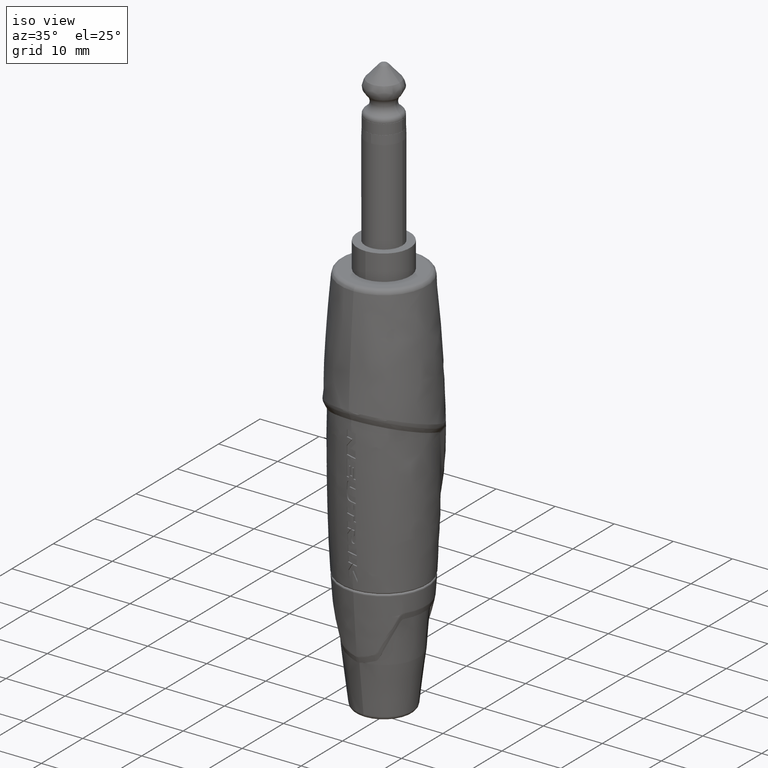
[diagram: clean part render]
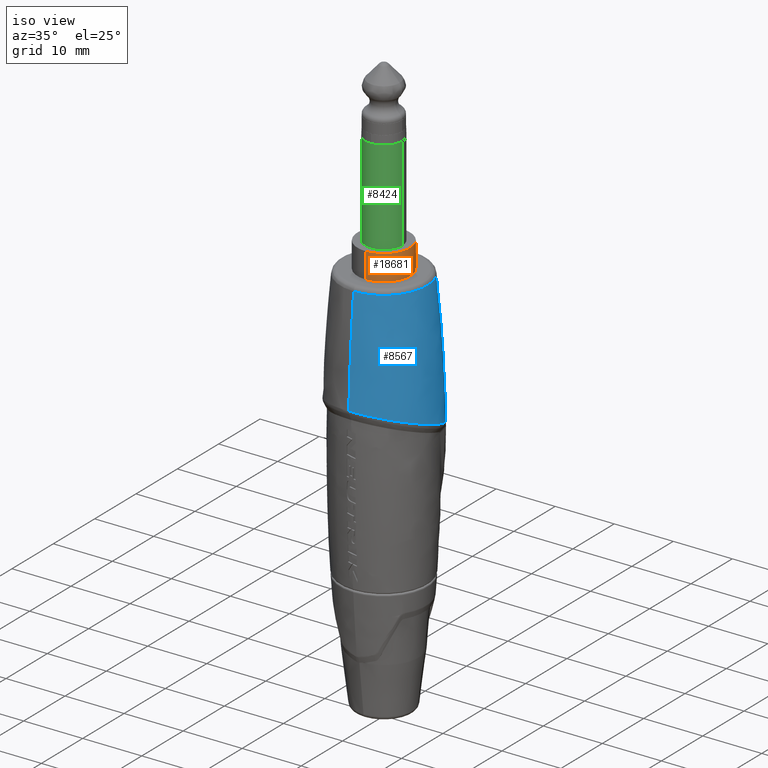
[diagram: same view with three faces highlighted in distinct colors, each labeled with its STEP entity id]
A machine part, iso view with three faces highlighted in distinct colors.
Their STEP definitions:

[orange] entity #18681 — the highlighted cylindrical surface (edge-blend (fillet) strip) has radius 4.45 mm, axis along (0, 0, -1).
#47=CARTESIAN_POINT('',(0.E0,0.E0,-1.75E1));
#48=DIRECTION('',(0.E0,0.E0,-1.E0));
#49=DIRECTION('',(0.E0,1.E0,0.E0));
#50=AXIS2_PLACEMENT_3D('',#47,#48,#49);
#62=DIRECTION('',(0.E0,0.E0,1.E0));
#63=VECTOR('',#62,4.329089653438E0);
#64=CARTESIAN_POINT('',(0.E0,4.45E0,-2.182908965344E1));
#65=LINE('',#64,#63);
#66=DIRECTION('',(0.E0,0.E0,1.E0));
#67=VECTOR('',#66,4.329089653438E0);
#68=CARTESIAN_POINT('',(0.E0,-4.45E0,-2.182908965344E1));
#69=LINE('',#68,#67);
#7478=CARTESIAN_POINT('',(0.E0,0.E0,-2.182908965344E1));
#7479=DIRECTION('',(0.E0,0.E0,-1.E0));
#7480=DIRECTION('',(0.E0,1.E0,0.E0));
#7481=AXIS2_PLACEMENT_3D('',#7478,#7479,#7480);
#7721=CARTESIAN_POINT('',(0.E0,4.45E0,-1.75E1));
#7722=CARTESIAN_POINT('',(0.E0,-4.45E0,-1.75E1));
#7723=VERTEX_POINT('',#7721);
#7724=VERTEX_POINT('',#7722);
#8329=CARTESIAN_POINT('',(0.E0,4.45E0,-2.182908965344E1));
#8330=CARTESIAN_POINT('',(0.E0,-4.45E0,-2.182908965344E1));
#8331=VERTEX_POINT('',#8329);
#8332=VERTEX_POINT('',#8330);
#18670=CARTESIAN_POINT('',(0.E0,0.E0,-1.7175E1));
#18671=DIRECTION('',(0.E0,0.E0,-1.E0));
#18672=DIRECTION('',(0.E0,-1.E0,0.E0));
#18673=AXIS2_PLACEMENT_3D('',#18670,#18671,#18672);
#18674=CYLINDRICAL_SURFACE('',#18673,4.45E0);
#18675=ORIENTED_EDGE('',*,*,#8481,.T.);
#18676=ORIENTED_EDGE('',*,*,#8465,.T.);
#18677=ORIENTED_EDGE('',*,*,#8432,.F.);
#18678=ORIENTED_EDGE('',*,*,#8462,.F.);
#18679=EDGE_LOOP('',(#18675,#18676,#18677,#18678));
#18680=FACE_OUTER_BOUND('',#18679,.F.);
#18681=ADVANCED_FACE('',(#18680),#18674,.T.);
#51=CIRCLE('',#50,4.45E0);
#7482=CIRCLE('',#7481,4.45E0);
#8432=EDGE_CURVE('',#7723,#7724,#51,.T.);
#8462=EDGE_CURVE('',#8331,#7723,#65,.T.);
#8465=EDGE_CURVE('',#8332,#7724,#69,.T.);
#8481=EDGE_CURVE('',#8331,#8332,#7482,.T.);

[blue] entity #8567 — the highlighted face is a freeform B-spline surface patch.
#90=CARTESIAN_POINT('',(5.633059290090E-1,8.546565744403E0,-5.690287393228E1));
#91=CARTESIAN_POINT('',(5.013511374231E-1,8.550286008314E0,-5.691794391557E1));
#92=CARTESIAN_POINT('',(3.769751142255E-1,8.556530583069E0,-5.694300355376E1));
#93=CARTESIAN_POINT('',(1.881799148025E-1,8.562220140791E0,-5.696560489167E1));
#94=CARTESIAN_POINT('',(6.275104963152E-2,8.563473823630E0,-5.697056236456E1));
#95=CARTESIAN_POINT('',(1.010303935482E-14,8.563473839911E0,-5.697056248902E1));
#97=CARTESIAN_POINT('',(1.010303952409E-14,-2.768013003356E2,
-5.004128554270E1));
#98=DIRECTION('',(-1.E0,0.E0,0.E0));
#99=DIRECTION('',(0.E0,9.997053183331E-1,-2.427501795013E-2));
#100=AXIS2_PLACEMENT_3D('',#97,#98,#99);
#102=CARTESIAN_POINT('',(3.403204476718E-1,8.376457366021E0,-6.232030293010E1));
#103=CARTESIAN_POINT('',(3.027411987171E-1,8.377624308419E0,-6.232865327475E1));
#104=CARTESIAN_POINT('',(2.274144876906E-1,8.379580920511E0,-6.234254572713E1));
#105=CARTESIAN_POINT('',(1.134219338954E-1,8.381359562029E0,-6.235506058657E1));
#106=CARTESIAN_POINT('',(3.780185357188E-2,8.381750803343E0,-6.235780131116E1));
#107=CARTESIAN_POINT('',(-7.233818427476E-12,8.381750805007E0,
-6.235780133953E1));
#109=CARTESIAN_POINT('',(2.535993676242E0,8.018073157899E0,-6.169599589441E1));
#110=CARTESIAN_POINT('',(2.390630102668E0,8.061883894984E0,-6.174651627005E1));
#111=CARTESIAN_POINT('',(2.098712471218E0,8.141380359958E0,-6.184416685139E1));
#112=CARTESIAN_POINT('',(1.658257290950E0,8.236539919625E0,-6.198024913657E1));
#113=CARTESIAN_POINT('',(1.217329940257E0,8.307752331463E0,-6.210552801262E1));
#114=CARTESIAN_POINT('',(7.773391931449E-1,8.355463207687E0,-6.221961801632E1));
#115=CARTESIAN_POINT('',(4.856092908195E-1,8.371945502210E0,-6.228801812547E1));
#116=CARTESIAN_POINT('',(3.403204476718E-1,8.376457366021E0,-6.232030293010E1));
#118=CARTESIAN_POINT('',(3.178535301891E0,7.815182240760E0,-6.100833639668E1));
#119=CARTESIAN_POINT('',(3.159642238165E0,7.820798261781E0,-6.105815930987E1));
#120=CARTESIAN_POINT('',(3.118912116413E0,7.833312415408E0,-6.115150828203E1));
#121=CARTESIAN_POINT('',(3.050726531723E0,7.855023067520E0,-6.127322545386E1));
#122=CARTESIAN_POINT('',(2.976857376853E0,7.878905651725E0,-6.137782981023E1));
#123=CARTESIAN_POINT('',(2.898318882758E0,7.904363598773E0,-6.146691828337E1));
#124=CARTESIAN_POINT('',(2.814708626573E0,7.931301591587E0,-6.154286464814E1));
#125=CARTESIAN_POINT('',(2.725993903374E0,7.959523762682E0,-6.160657784713E1));
#126=CARTESIAN_POINT('',(2.632993637433E0,7.988579772123E0,-6.165810316662E1));
#127=CARTESIAN_POINT('',(2.568724062813E0,8.008208468665E0,-6.168462256135E1));
#128=CARTESIAN_POINT('',(2.535993676242E0,8.018073157899E0,-6.169599589441E1));
#130=CARTESIAN_POINT('',(7.030612731567E0,4.984460320774E0,-4.594916890749E1));
#131=CARTESIAN_POINT('',(6.916890420499E0,5.164718602683E0,-4.675001944230E1));
#132=CARTESIAN_POINT('',(6.665157749849E0,5.520023610735E0,-4.833085230996E1));
#133=CARTESIAN_POINT('',(6.217550160843E0,6.026666943979E0,-5.064264706766E1));
#134=CARTESIAN_POINT('',(5.705652180288E0,6.495834194162E0,-5.288699946051E1));
#135=CARTESIAN_POINT('',(5.133898498054E0,6.919159356969E0,-5.507194327152E1));
#136=CARTESIAN_POINT('',(4.518877864678E0,7.283203593357E0,-5.715740382145E1));
#137=CARTESIAN_POINT('',(3.867477126391E0,7.585942151800E0,-5.913779341807E1));
#138=CARTESIAN_POINT('',(3.410886847653E0,7.746113206963E0,-6.039563592416E1));
#139=CARTESIAN_POINT('',(3.178535301891E0,7.815182240760E0,-6.100833639668E1));
#141=CARTESIAN_POINT('',(7.685559442791E0,3.858602477099E0,-4.481839443025E1));
#142=CARTESIAN_POINT('',(7.647918706398E0,3.934692792848E0,-4.484579542653E1));
#143=CARTESIAN_POINT('',(7.575449085304E0,4.075728740708E0,-4.490235989416E1));
#144=CARTESIAN_POINT('',(7.478489634895E0,4.253747016673E0,-4.499244331978E1));
#145=CARTESIAN_POINT('',(7.393006377535E0,4.403480663028E0,-4.508613639566E1));
#146=CARTESIAN_POINT('',(7.318804023046E0,4.528649027417E0,-4.518335312496E1));
#147=CARTESIAN_POINT('',(7.254559569359E0,4.633811570562E0,-4.528312972866E1));
#148=CARTESIAN_POINT('',(7.198999624815E0,4.722613233937E0,-4.538525050858E1));
#149=CARTESIAN_POINT('',(7.151127629241E0,4.797793892268E0,-4.549196497644E1));
#150=CARTESIAN_POINT('',(7.110355510031E0,4.861006759350E0,-4.560167430829E1));
#151=CARTESIAN_POINT('',(7.076635407198E0,4.912945616676E0,-4.571431847547E1));
#152=CARTESIAN_POINT('',(7.049933423311E0,4.954157807692E0,-4.582996226313E1));
#153=CARTESIAN_POINT('',(7.036316649656E0,4.975417871652E0,-4.590908473950E1));
#154=CARTESIAN_POINT('',(7.030612731567E0,4.984460320774E0,-4.594916890749E1));
#156=CARTESIAN_POINT('',(6.703010822552E-12,-8.486235865146E0,
-4.044488477223E1));
#157=CARTESIAN_POINT('',(1.790141594929E-1,-8.486234874874E0,
-4.044489110898E1));
#158=CARTESIAN_POINT('',(5.373681408066E-1,-8.475035420281E0,
-4.044875344711E1));
#159=CARTESIAN_POINT('',(1.073858028617E0,-8.424503757560E0,-4.046645980645E1));
#160=CARTESIAN_POINT('',(1.606998822745E0,-8.340266830287E0,-4.049590369047E1));
#161=CARTESIAN_POINT('',(2.134517888582E0,-8.222515397287E0,-4.053687809876E1));
#162=CARTESIAN_POINT('',(2.654115951512E0,-8.071655806591E0,-4.058953684900E1));
#163=CARTESIAN_POINT('',(3.164595839599E0,-7.887848574007E0,-4.065386265539E1));
#164=CARTESIAN_POINT('',(3.664625312700E0,-7.671141032685E0,-4.072969387156E1));
#165=CARTESIAN_POINT('',(4.151452220251E0,-7.422255675272E0,-4.081672602983E1));
#166=CARTESIAN_POINT('',(4.622363687630E0,-7.142270809764E0,-4.091446140055E1));
#167=CARTESIAN_POINT('',(5.076034807161E0,-6.831726388705E0,-4.102362269846E1));
#168=CARTESIAN_POINT('',(5.512165037582E0,-6.490000121356E0,-4.114362055776E1));
#169=CARTESIAN_POINT('',(5.926793904676E0,-6.119318446396E0,-4.127337361650E1));
#170=CARTESIAN_POINT('',(6.317426261618E0,-5.721539128630E0,-4.141267924509E1));
#171=CARTESIAN_POINT('',(6.682723865408E0,-5.297567432756E0,-4.156159735876E1));
#172=CARTESIAN_POINT('',(7.021334838836E0,-4.848139169332E0,-4.171990322843E1));
#173=CARTESIAN_POINT('',(7.330980888553E0,-4.375294788804E0,-4.188641258588E1));
#174=CARTESIAN_POINT('',(7.609739969292E0,-3.881121724032E0,-4.206048723032E1));
#175=CARTESIAN_POINT('',(7.855864472772E0,-3.367925758170E0,-4.224170265750E1));
#176=CARTESIAN_POINT('',(8.067990569875E0,-2.837669101604E0,-4.242917978589E1));
#177=CARTESIAN_POINT('',(8.244779630833E0,-2.292584717751E0,-4.262203525998E1));
#178=CARTESIAN_POINT('',(8.384927995527E0,-1.735605668413E0,-4.281936928290E1));
#179=CARTESIAN_POINT('',(8.487487383175E0,-1.169625673614E0,-4.302024569037E1));
#180=CARTESIAN_POINT('',(8.551813278790E0,-5.972670930036E-1,
-4.322366203745E1));
#181=CARTESIAN_POINT('',(8.577447268791E0,-2.124142471446E-2,
-4.342859421960E1));
#182=CARTESIAN_POINT('',(8.564166587114E0,5.553781537262E-1,-4.363405715739E1));
#183=CARTESIAN_POINT('',(8.512056938914E0,1.129504859469E0,-4.383904450395E1));
#184=CARTESIAN_POINT('',(8.421490644926E0,1.698153840641E0,-4.404252309776E1));
#185=CARTESIAN_POINT('',(8.293091131780E0,2.258477918015E0,-4.424338888058E1));
#186=CARTESIAN_POINT('',(8.127728863125E0,2.807704525586E0,-4.444054040163E1));
#187=CARTESIAN_POINT('',(7.926535077961E0,3.343083677718E0,-4.463294402557E1));
#188=CARTESIAN_POINT('',(7.769553664985E0,3.688806362510E0,-4.475730076239E1));
#189=CARTESIAN_POINT('',(7.685559442791E0,3.858602477099E0,-4.481839443025E1));
#191=CARTESIAN_POINT('',(-2.379534312149E-14,2.768013003356E2,
-5.004128554270E1));
#192=DIRECTION('',(1.E0,0.E0,0.E0));
#193=DIRECTION('',(0.E0,-9.953521821281E-1,9.630178364273E-2));
#194=AXIS2_PLACEMENT_3D('',#191,#192,#193);
#196=CARTESIAN_POINT('',(1.010303952409E-14,1.313642599268E-14,
-2.255204822652E1));
#197=DIRECTION('',(0.E0,0.E0,1.E0));
#198=DIRECTION('',(0.E0,-1.E0,0.E0));
#199=AXIS2_PLACEMENT_3D('',#196,#197,#198);
#201=CARTESIAN_POINT('',(1.010303952410E-14,-2.768013003356E2,
-5.004128554270E1));
#202=DIRECTION('',(-1.E0,0.E0,0.E0));
#203=DIRECTION('',(0.E0,9.953521821281E-1,9.630178364273E-2));
#204=AXIS2_PLACEMENT_3D('',#201,#202,#203);
#206=CARTESIAN_POINT('',(5.842018231846E0,5.450000484444E0,-3.066902398234E1));
#207=CARTESIAN_POINT('',(5.839519043186E0,5.471912657011E0,-3.086189897940E1));
#208=CARTESIAN_POINT('',(5.836131732764E0,5.515387617240E0,-3.126897797373E1));
#209=CARTESIAN_POINT('',(5.835944496933E0,5.578966466548E0,-3.194304048002E1));
#210=CARTESIAN_POINT('',(5.839550876436E0,5.641678036552E0,-3.268227543782E1));
#211=CARTESIAN_POINT('',(5.845602443498E0,5.704576210521E0,-3.349052827295E1));
#212=CARTESIAN_POINT('',(5.852290529249E0,5.768934003018E0,-3.437078520381E1));
#213=CARTESIAN_POINT('',(5.857373423918E0,5.836505263540E0,-3.532913253890E1));
#214=CARTESIAN_POINT('',(5.858037924990E0,5.909667091468E0,-3.637671107429E1));
#215=CARTESIAN_POINT('',(5.850592519100E0,5.991347378409E0,-3.752740451014E1));
#216=CARTESIAN_POINT('',(5.830072138080E0,6.085154333445E0,-3.879756209076E1));
#217=CARTESIAN_POINT('',(5.789634968034E0,6.195603951685E0,-4.020698393554E1));
#218=CARTESIAN_POINT('',(5.720074764608E0,6.327980078945E0,-4.177817216982E1));
#219=CARTESIAN_POINT('',(5.608131015406E0,6.488922713392E0,-4.354288063477E1));
#220=CARTESIAN_POINT('',(5.436988098209E0,6.684138081643E0,-4.552397247994E1));
#221=CARTESIAN_POINT('',(5.179037727075E0,6.922291984010E0,-4.779906950668E1));
#222=CARTESIAN_POINT('',(4.818346156254E0,7.190748414973E0,-5.029002936452E1));
#223=CARTESIAN_POINT('',(4.384806790208E0,7.447766216659E0,-5.273699183362E1));
#224=CARTESIAN_POINT('',(4.097108121766E0,7.584654497335E0,-5.413040505669E1));
#225=CARTESIAN_POINT('',(3.950975871124E0,7.647901873272E0,-5.478498779579E1));
#227=CARTESIAN_POINT('',(3.950973594053E0,7.647902861636E0,-5.478499782383E1));
#228=CARTESIAN_POINT('',(3.948021856871E0,7.649180543210E0,-5.479820802055E1));
#229=CARTESIAN_POINT('',(3.941745352435E0,7.651920628823E0,-5.482474567293E1));
#230=CARTESIAN_POINT('',(3.931161083264E0,7.656603168575E0,-5.486497590737E1));
#231=CARTESIAN_POINT('',(3.923314468394E0,7.660108994753E0,-5.489203347296E1));
#232=CARTESIAN_POINT('',(3.919187757655E0,7.661959692913E0,-5.490562298159E1));
#234=CARTESIAN_POINT('',(3.919187757655E0,7.661959692913E0,-5.490562298159E1));
#235=CARTESIAN_POINT('',(3.901992354514E0,7.669671046614E0,-5.496224709573E1));
#236=CARTESIAN_POINT('',(3.862726534439E0,7.687425779458E0,-5.507504124252E1));
#237=CARTESIAN_POINT('',(3.787855310071E0,7.721270007371E0,-5.524436652535E1));
#238=CARTESIAN_POINT('',(3.698259863023E0,7.761274720316E0,-5.540853882946E1));
#239=CARTESIAN_POINT('',(3.596242743702E0,7.805882343945E0,-5.556279547034E1));
#240=CARTESIAN_POINT('',(3.484422282558E0,7.853457704245E0,-5.570359806517E1));
#241=CARTESIAN_POINT('',(3.365722522747E0,7.902361550241E0,-5.582839579139E1));
#242=CARTESIAN_POINT('',(3.242709318562E0,7.951264183357E0,-5.593603246696E1));
#243=CARTESIAN_POINT('',(3.117633481562E0,7.999119715429E0,-5.602624033872E1));
#244=CARTESIAN_POINT('',(2.992075037970E0,8.045269720156E0,-5.609953636742E1));
#245=CARTESIAN_POINT('',(2.909140463649E0,8.074518662100E0,-5.613756999E1));
#246=CARTESIAN_POINT('',(2.867877540607E0,8.088772630108E0,-5.615410917444E1));
#248=CARTESIAN_POINT('',(2.867877540607E0,8.088772630108E0,-5.615410917444E1));
#249=CARTESIAN_POINT('',(2.711609472344E0,8.142753984737E0,-5.621674354375E1));
#250=CARTESIAN_POINT('',(2.399265337573E0,8.240579663034E0,-5.633750462255E1));
#251=CARTESIAN_POINT('',(1.932466411112E0,8.358353814345E0,-5.650404810431E1));
#252=CARTESIAN_POINT('',(1.470172600414E0,8.448238198225E0,-5.665449470040E1));
#253=CARTESIAN_POINT('',(1.013153348861E0,8.511823202623E0,-5.678843262670E1));
#254=CARTESIAN_POINT('',(7.124255407300E-1,8.537611300265E0,-5.686660138399E1));
#255=CARTESIAN_POINT('',(5.633059290090E-1,8.546565744403E0,-5.690287393228E1));
#1009=CARTESIAN_POINT('',(6.703010822552E-12,-8.486235865146E0,
-4.044488477223E1));
#1065=CARTESIAN_POINT('',(1.010303935482E-14,8.563473839911E0,
-5.697056248902E1));
#4388=CARTESIAN_POINT('',(4.956277041621E0,5.45E0,-2.302908965344E1));
#4389=CARTESIAN_POINT('',(5.135612672479E0,5.450002554787E0,-2.429845194334E1));
#4390=CARTESIAN_POINT('',(5.458884867286E0,5.450233311475E0,-2.684152193765E1));
#4391=CARTESIAN_POINT('',(5.723269059888E0,5.450136726478E0,-2.939385820190E1));
#4392=CARTESIAN_POINT('',(5.842009204085E0,5.450138921044E0,-3.067031542017E1));
#4394=CARTESIAN_POINT('',(3.458345721706E-14,7.366626236840E0,
-2.302908965344E1));
#4395=CARTESIAN_POINT('',(1.646125867342E-1,7.366626236840E0,
-2.302908965344E1));
#4396=CARTESIAN_POINT('',(4.939127678037E-1,7.355597139966E0,
-2.302904731475E1));
#4397=CARTESIAN_POINT('',(9.866066279734E-1,7.305819913683E0,
-2.302888048577E1));
#4398=CARTESIAN_POINT('',(1.473579456892E0,7.223328166961E0,-2.302866416266E1));
#4399=CARTESIAN_POINT('',(1.954761895223E0,7.108232080876E0,-2.302845780439E1));
#4400=CARTESIAN_POINT('',(2.427529780757E0,6.960936816768E0,-2.302831594533E1));
#4401=CARTESIAN_POINT('',(2.888177277134E0,6.782765194338E0,-2.302827653528E1));
#4402=CARTESIAN_POINT('',(3.336993247734E0,6.573614575069E0,-2.302835400204E1));
#4403=CARTESIAN_POINT('',(3.770487809994E0,6.334916447881E0,-2.302853576184E1));
#4404=CARTESIAN_POINT('',(4.186076311598E0,6.068349079938E0,-2.302877833125E1));
#4405=CARTESIAN_POINT('',(4.583572676082E0,5.774029198960E0,-2.302901014873E1));
#4406=CARTESIAN_POINT('',(4.834523834777E0,5.560723417215E0,-2.302908965344E1));
#4407=CARTESIAN_POINT('',(4.956277041621E0,5.45E0,-2.302908965344E1));
#5084=CARTESIAN_POINT('',(5.842024792964E0,5.450000000001E0,-3.066908965345E1));
#7884=VERTEX_POINT('',#4394);
#7885=VERTEX_POINT('',#4407);
#8151=VERTEX_POINT('',#102);
#8152=VERTEX_POINT('',#107);
#8165=VERTEX_POINT('',#1009);
#8167=VERTEX_POINT('',#189);
#8169=VERTEX_POINT('',#154);
#8171=VERTEX_POINT('',#139);
#8173=VERTEX_POINT('',#128);
#8197=VERTEX_POINT('',#1065);
#8199=VERTEX_POINT('',#90);
#8201=VERTEX_POINT('',#248);
#8203=VERTEX_POINT('',#234);
#8204=VERTEX_POINT('',#5084);
#8206=VERTEX_POINT('',#225);
#8223=CARTESIAN_POINT('',(1.010303952409E-14,7.320875938999E0,
-2.255204822652E1));
#8224=VERTEX_POINT('',#8223);
#8225=CARTESIAN_POINT('',(1.099958825265E-14,-7.320875938999E0,
-2.255204822652E1));
#8226=VERTEX_POINT('',#8225);
#8515=CARTESIAN_POINT('',(0.E0,-8.381750805007E0,-6.235780133953E1));
#8516=CARTESIAN_POINT('',(0.E0,-8.955396839076E0,-4.907530091739E1));
#8517=CARTESIAN_POINT('',(0.E0,-8.601196788349E0,-3.578513803047E1));
#8518=CARTESIAN_POINT('',(0.E0,-7.320875938999E0,-2.255204822652E1));
#8519=CARTESIAN_POINT('',(1.676350161001E1,-8.381750805007E0,
-6.235780133953E1));
#8520=CARTESIAN_POINT('',(1.791079367815E1,-8.955396839076E0,
-4.907530091739E1));
#8521=CARTESIAN_POINT('',(1.720239357670E1,-8.601196788349E0,
-3.578513803047E1));
#8522=CARTESIAN_POINT('',(1.464175187800E1,-7.320875938999E0,
-2.255204822652E1));
#8523=CARTESIAN_POINT('',(1.676350161001E1,8.381750805007E0,-6.235780133953E1));
#8524=CARTESIAN_POINT('',(1.791079367815E1,8.955396839076E0,-4.907530091739E1));
#8525=CARTESIAN_POINT('',(1.720239357670E1,8.601196788349E0,-3.578513803047E1));
#8526=CARTESIAN_POINT('',(1.464175187800E1,7.320875938999E0,-2.255204822652E1));
#8527=CARTESIAN_POINT('',(0.E0,8.381750805007E0,-6.235780133953E1));
#8528=CARTESIAN_POINT('',(0.E0,8.955396839077E0,-4.907530091739E1));
#8529=CARTESIAN_POINT('',(0.E0,8.601196788349E0,-3.578513803047E1));
#8530=CARTESIAN_POINT('',(0.E0,7.320875938999E0,-2.255204822652E1));
#8531=(BOUNDED_SURFACE()B_SPLINE_SURFACE(3,3,((#8515,#8516,#8517,#8518),(#8519,
#8520,#8521,#8522),(#8523,#8524,#8525,#8526),(#8527,#8528,#8529,#8530)),
.UNSPECIFIED.,.F.,.F.,.F.)B_SPLINE_SURFACE_WITH_KNOTS((4,4),(4,4),(0.E0,1.E0),(
0.E0,1.E0),.UNSPECIFIED.)GEOMETRIC_REPRESENTATION_ITEM()RATIONAL_B_SPLINE_SURFACE(((2.002438437929E0,1.999187187357E0,1.999187187357E0,2.002438437929E0),(
6.674794793098E-1,6.663957291190E-1,6.663957291190E-1,6.674794793098E-1),(
6.674794793098E-1,6.663957291190E-1,6.663957291190E-1,6.674794793098E-1),(
2.002438437929E0,1.999187187357E0,1.999187187357E0,2.002438437929E0)))REPRESENTATION_ITEM('')SURFACE());
#8533=ORIENTED_EDGE('',*,*,#8532,.T.);
#8535=ORIENTED_EDGE('',*,*,#8534,.T.);
#8537=ORIENTED_EDGE('',*,*,#8536,.F.);
#8539=ORIENTED_EDGE('',*,*,#8538,.F.);
#8541=ORIENTED_EDGE('',*,*,#8540,.F.);
#8543=ORIENTED_EDGE('',*,*,#8542,.F.);
#8545=ORIENTED_EDGE('',*,*,#8544,.F.);
#8547=ORIENTED_EDGE('',*,*,#8546,.F.);
#8549=ORIENTED_EDGE('',*,*,#8548,.F.);
#8550=ORIENTED_EDGE('',*,*,#8509,.T.);
#8552=ORIENTED_EDGE('',*,*,#8551,.T.);
#8554=ORIENTED_EDGE('',*,*,#8553,.T.);
#8556=ORIENTED_EDGE('',*,*,#8555,.T.);
#8558=ORIENTED_EDGE('',*,*,#8557,.T.);
#8560=ORIENTED_EDGE('',*,*,#8559,.T.);
#8562=ORIENTED_EDGE('',*,*,#8561,.T.);
#8564=ORIENTED_EDGE('',*,*,#8563,.T.);
#8565=EDGE_LOOP('',(#8533,#8535,#8537,#8539,#8541,#8543,#8545,#8547,#8549,#8550,
#8552,#8554,#8556,#8558,#8560,#8562,#8564));
#8566=FACE_OUTER_BOUND('',#8565,.F.);
#8567=ADVANCED_FACE('',(#8566),#8531,.T.);
#96=B_SPLINE_CURVE_WITH_KNOTS('',3,(#90,#91,#92,#93,#94,#95),.UNSPECIFIED.,.F.,
.F.,(4,1,1,4),(0.E0,3.333333333333E-1,6.666666666667E-1,1.E0),.UNSPECIFIED.);
#101=CIRCLE('',#100,2.854488907304E2);
#108=B_SPLINE_CURVE_WITH_KNOTS('',3,(#102,#103,#104,#105,#106,#107),
.UNSPECIFIED.,.F.,.F.,(4,1,1,4),(0.E0,3.333333333333E-1,6.666666666667E-1,1.E0),
.UNSPECIFIED.);
#117=B_SPLINE_CURVE_WITH_KNOTS('',3,(#109,#110,#111,#112,#113,#114,#115,#116),
.UNSPECIFIED.,.F.,.F.,(4,1,1,1,1,4),(0.E0,2.E-1,4.E-1,6.E-1,8.E-1,1.E0),
.UNSPECIFIED.);
#129=B_SPLINE_CURVE_WITH_KNOTS('',3,(#118,#119,#120,#121,#122,#123,#124,#125,
#126,#127,#128),.UNSPECIFIED.,.F.,.F.,(4,1,1,1,1,1,1,1,4),(0.E0,1.25E-1,2.5E-1,
3.75E-1,5.E-1,6.25E-1,7.5E-1,8.75E-1,1.E0),.UNSPECIFIED.);
#140=B_SPLINE_CURVE_WITH_KNOTS('',3,(#130,#131,#132,#133,#134,#135,#136,#137,
#138,#139),.UNSPECIFIED.,.F.,.F.,(4,1,1,1,1,1,1,4),(0.E0,1.428571428571E-1,
2.857142857143E-1,4.285714285714E-1,5.714285714286E-1,7.142857142857E-1,
8.571428571429E-1,1.E0),.UNSPECIFIED.);
#155=B_SPLINE_CURVE_WITH_KNOTS('',3,(#141,#142,#143,#144,#145,#146,#147,#148,
#149,#150,#151,#152,#153,#154),.UNSPECIFIED.,.F.,.F.,(4,1,1,1,1,1,1,1,1,1,1,4),(
0.E0,9.090909090909E-2,1.818181818182E-1,2.727272727273E-1,3.636363636364E-1,
4.545454545455E-1,5.454545454545E-1,6.363636363636E-1,7.272727272727E-1,
8.181818181818E-1,9.090909090909E-1,1.E0),.UNSPECIFIED.);
#190=B_SPLINE_CURVE_WITH_KNOTS('',3,(#156,#157,#158,#159,#160,#161,#162,#163,
#164,#165,#166,#167,#168,#169,#170,#171,#172,#173,#174,#175,#176,#177,#178,#179,
#180,#181,#182,#183,#184,#185,#186,#187,#188,#189),.UNSPECIFIED.,.F.,.F.,(4,1,1,
1,1,1,1,1,1,1,1,1,1,1,1,1,1,1,1,1,1,1,1,1,1,1,1,1,1,1,1,4),(0.E0,
3.225806451613E-2,6.451612903226E-2,9.677419354839E-2,1.290322580645E-1,
1.612903225806E-1,1.935483870968E-1,2.258064516129E-1,2.580645161290E-1,
2.903225806452E-1,3.225806451613E-1,3.548387096774E-1,3.870967741935E-1,
4.193548387097E-1,4.516129032258E-1,4.838709677419E-1,5.161290322581E-1,
5.483870967742E-1,5.806451612903E-1,6.129032258065E-1,6.451612903226E-1,
6.774193548387E-1,7.096774193548E-1,7.419354838710E-1,7.741935483871E-1,
8.064516129032E-1,8.387096774194E-1,8.709677419355E-1,9.032258064516E-1,
9.354838709677E-1,9.677419354839E-1,1.E0),.UNSPECIFIED.);
#195=CIRCLE('',#194,2.854488907304E2);
#200=CIRCLE('',#199,7.320875938999E0);
#205=CIRCLE('',#204,2.854488907304E2);
#226=B_SPLINE_CURVE_WITH_KNOTS('',3,(#206,#207,#208,#209,#210,#211,#212,#213,
#214,#215,#216,#217,#218,#219,#220,#221,#222,#223,#224,#225),.UNSPECIFIED.,.F.,
.F.,(4,1,1,1,1,1,1,1,1,1,1,1,1,1,1,1,1,4),(0.E0,5.882352941176E-2,
1.176470588235E-1,1.764705882353E-1,2.352941176471E-1,2.941176470588E-1,
3.529411764706E-1,4.117647058824E-1,4.705882352941E-1,5.294117647059E-1,
5.882352941176E-1,6.470588235294E-1,7.058823529412E-1,7.647058823529E-1,
8.235294117647E-1,8.823529411765E-1,9.411764705882E-1,1.E0),.UNSPECIFIED.);
#233=B_SPLINE_CURVE_WITH_KNOTS('',3,(#227,#228,#229,#230,#231,#232),
.UNSPECIFIED.,.F.,.F.,(4,1,1,4),(0.E0,3.333333333333E-1,6.666666666667E-1,1.E0),
.UNSPECIFIED.);
#247=B_SPLINE_CURVE_WITH_KNOTS('',3,(#234,#235,#236,#237,#238,#239,#240,#241,
#242,#243,#244,#245,#246),.UNSPECIFIED.,.F.,.F.,(4,1,1,1,1,1,1,1,1,1,4),(0.E0,
1.E-1,2.E-1,3.E-1,4.E-1,5.E-1,6.E-1,7.E-1,8.E-1,9.E-1,1.E0),.UNSPECIFIED.);
#256=B_SPLINE_CURVE_WITH_KNOTS('',3,(#248,#249,#250,#251,#252,#253,#254,#255),
.UNSPECIFIED.,.F.,.F.,(4,1,1,1,1,4),(0.E0,2.E-1,4.E-1,6.E-1,8.E-1,1.E0),
.UNSPECIFIED.);
#4393=B_SPLINE_CURVE_WITH_KNOTS('',3,(#4388,#4389,#4390,#4391,#4392),
.UNSPECIFIED.,.F.,.F.,(4,1,4),(0.E0,5.E-1,1.E0),.UNSPECIFIED.);
#4408=B_SPLINE_CURVE_WITH_KNOTS('',3,(#4394,#4395,#4396,#4397,#4398,#4399,#4400,
#4401,#4402,#4403,#4404,#4405,#4406,#4407),.UNSPECIFIED.,.F.,.F.,(4,1,1,1,1,1,1,
1,1,1,1,4),(0.E0,9.090909090909E-2,1.818181818182E-1,2.727272727273E-1,
3.636363636364E-1,4.545454545455E-1,5.454545454545E-1,6.363636363636E-1,
7.272727272727E-1,8.181818181818E-1,9.090909090909E-1,1.E0),.UNSPECIFIED.);
#8509=EDGE_CURVE('',#8226,#8224,#200,.T.);
#8532=EDGE_CURVE('',#8199,#8197,#96,.T.);
#8534=EDGE_CURVE('',#8197,#8152,#101,.T.);
#8536=EDGE_CURVE('',#8151,#8152,#108,.T.);
#8538=EDGE_CURVE('',#8173,#8151,#117,.T.);
#8540=EDGE_CURVE('',#8171,#8173,#129,.T.);
#8542=EDGE_CURVE('',#8169,#8171,#140,.T.);
#8544=EDGE_CURVE('',#8167,#8169,#155,.T.);
#8546=EDGE_CURVE('',#8165,#8167,#190,.T.);
#8548=EDGE_CURVE('',#8226,#8165,#195,.T.);
#8551=EDGE_CURVE('',#8224,#7884,#205,.T.);
#8553=EDGE_CURVE('',#7884,#7885,#4408,.T.);
#8555=EDGE_CURVE('',#7885,#8204,#4393,.T.);
#8557=EDGE_CURVE('',#8204,#8206,#226,.T.);
#8559=EDGE_CURVE('',#8206,#8203,#233,.T.);
#8561=EDGE_CURVE('',#8203,#8201,#247,.T.);
#8563=EDGE_CURVE('',#8201,#8199,#256,.T.);

[green] entity #8424 — the highlighted cylindrical surface (edge-blend (fillet) strip) has radius 3.14 mm, axis along (0, 0, -1).
#6=CARTESIAN_POINT('',(0.E0,0.E0,-1.5E0));
#7=DIRECTION('',(0.E0,0.E0,-1.E0));
#8=DIRECTION('',(1.E0,0.E0,0.E0));
#9=AXIS2_PLACEMENT_3D('',#6,#7,#8);
#15=CARTESIAN_POINT('',(0.E0,0.E0,-1.5E0));
#16=DIRECTION('',(0.E0,0.E0,-1.E0));
#17=DIRECTION('',(0.E0,-1.E0,0.E0));
#18=AXIS2_PLACEMENT_3D('',#15,#16,#17);
#29=CARTESIAN_POINT('',(0.E0,0.E0,-1.75E1));
#30=DIRECTION('',(0.E0,0.E0,-1.E0));
#31=DIRECTION('',(1.E0,0.E0,0.E0));
#32=AXIS2_PLACEMENT_3D('',#29,#30,#31);
#34=DIRECTION('',(0.E0,0.E0,1.E0));
#35=VECTOR('',#34,1.6E1);
#36=CARTESIAN_POINT('',(-3.14E0,0.E0,-1.75E1));
#37=LINE('',#36,#35);
#38=DIRECTION('',(0.E0,0.E0,1.E0));
#39=VECTOR('',#38,1.6E1);
#40=CARTESIAN_POINT('',(3.14E0,0.E0,-1.75E1));
#41=LINE('',#40,#39);
#7668=CARTESIAN_POINT('',(0.E0,-3.14E0,-1.5E0));
#7670=VERTEX_POINT('',#7668);
#7675=CARTESIAN_POINT('',(3.14E0,0.E0,-1.5E0));
#7676=VERTEX_POINT('',#7675);
#7677=CARTESIAN_POINT('',(-3.14E0,0.E0,-1.5E0));
#7678=VERTEX_POINT('',#7677);
#8333=CARTESIAN_POINT('',(-3.14E0,0.E0,-1.75E1));
#8334=CARTESIAN_POINT('',(3.14E0,0.E0,-1.75E1));
#8335=VERTEX_POINT('',#8333);
#8336=VERTEX_POINT('',#8334);
#8409=CARTESIAN_POINT('',(0.E0,0.E0,2.075E0));
#8410=DIRECTION('',(0.E0,0.E0,-1.E0));
#8411=DIRECTION('',(1.E0,0.E0,0.E0));
#8412=AXIS2_PLACEMENT_3D('',#8409,#8410,#8411);
#8413=CYLINDRICAL_SURFACE('',#8412,3.14E0);
#8415=ORIENTED_EDGE('',*,*,#8414,.T.);
#8417=ORIENTED_EDGE('',*,*,#8416,.T.);
#8418=ORIENTED_EDGE('',*,*,#8397,.F.);
#8419=ORIENTED_EDGE('',*,*,#8386,.F.);
#8421=ORIENTED_EDGE('',*,*,#8420,.F.);
#8422=EDGE_LOOP('',(#8415,#8417,#8418,#8419,#8421));
#8423=FACE_OUTER_BOUND('',#8422,.F.);
#8424=ADVANCED_FACE('',(#8423),#8413,.T.);
#10=CIRCLE('',#9,3.14E0);
#19=CIRCLE('',#18,3.14E0);
#33=CIRCLE('',#32,3.14E0);
#8386=EDGE_CURVE('',#7676,#7670,#10,.T.);
#8397=EDGE_CURVE('',#7670,#7678,#19,.T.);
#8414=EDGE_CURVE('',#8336,#8335,#33,.T.);
#8416=EDGE_CURVE('',#8335,#7678,#37,.T.);
#8420=EDGE_CURVE('',#8336,#7676,#41,.T.);